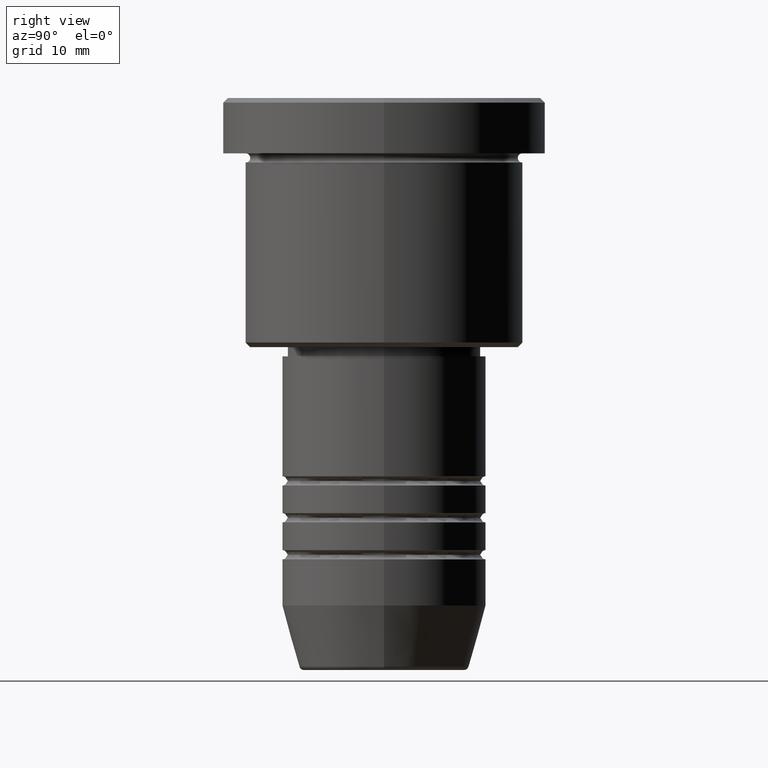
[diagram: clean part render]
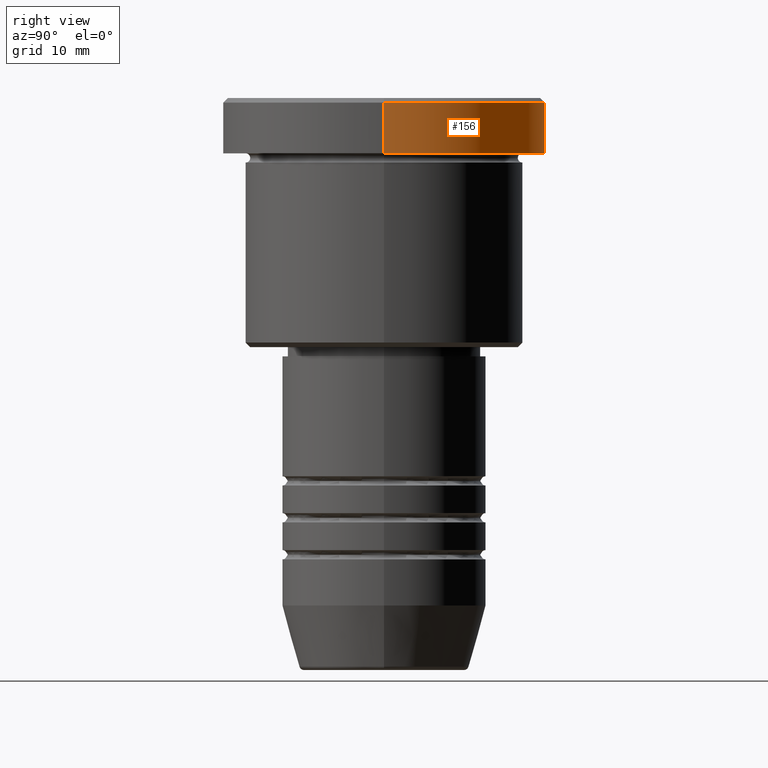
[diagram: same view with one face highlighted and labeled with its STEP entity id]
A machine part, right view. The second image highlights one B-rep face of the part: STEP entity #156.
In plain terms, the highlighted cylindrical surface (partial cylindrical patch) has radius 17.5 mm, axis along (-0, -0, 1).
Its self-contained STEP definition (entity closure, byte-faithful):
#44 = VERTEX_POINT ( 'NONE', #47 ) ;
#47 = CARTESIAN_POINT ( 'NONE',  ( -17.50000000000000000, 2.143131898507868248E-15, -0.5000000000000073275 ) ) ;
#121 = ORIENTED_EDGE ( 'NONE', *, *, #849, .T. ) ;
#150 = LINE ( 'NONE', #520, #932 ) ;
#154 = EDGE_LOOP ( 'NONE', ( #995, #637, #121, #396 ) ) ;
#156 = ADVANCED_FACE ( 'NONE', ( #720 ), #360, .T. ) ;
#198 = EDGE_CURVE ( 'NONE', #433, #624, #1159, .T. ) ;
#318 = LINE ( 'NONE', #397, #424 ) ;
#351 = DIRECTION ( 'NONE',  ( -0.000000000000000000, -0.000000000000000000, 1.000000000000000000 ) ) ;
#358 = CARTESIAN_POINT ( 'NONE',  ( 0.000000000000000000, 0.000000000000000000, -0.5000000000000073275 ) ) ;
#360 = CYLINDRICAL_SURFACE ( 'NONE', #549, 17.50000000000000000 ) ;
#371 = DIRECTION ( 'NONE',  ( 1.000000000000000000, 0.000000000000000000, 0.000000000000000000 ) ) ;
#383 = CIRCLE ( 'NONE', #1060, 17.50000000000000000 ) ;
#396 = ORIENTED_EDGE ( 'NONE', *, *, #856, .F. ) ;
#397 = CARTESIAN_POINT ( 'NONE',  ( -17.50000000000000000, 2.143131898507868248E-15, 0.000000000000000000 ) ) ;
#423 = CARTESIAN_POINT ( 'NONE',  ( 17.50000000000000000, 0.000000000000000000, -0.5000000000000073275 ) ) ;
#424 = VECTOR ( 'NONE', #1131, 1000.000000000000000 ) ;
#431 = DIRECTION ( 'NONE',  ( -0.000000000000000000, -0.000000000000000000, 1.000000000000000000 ) ) ;
#433 = VERTEX_POINT ( 'NONE', #676 ) ;
#503 = CARTESIAN_POINT ( 'NONE',  ( -17.50000000000000000, 2.143131898507868248E-15, -5.999999999999995559 ) ) ;
#520 = CARTESIAN_POINT ( 'NONE',  ( 17.50000000000000000, 0.000000000000000000, 0.000000000000000000 ) ) ;
#549 = AXIS2_PLACEMENT_3D ( 'NONE', #804, #1079, #1177 ) ;
#624 = VERTEX_POINT ( 'NONE', #503 ) ;
#637 = ORIENTED_EDGE ( 'NONE', *, *, #930, .T. ) ;
#676 = CARTESIAN_POINT ( 'NONE',  ( 17.50000000000000000, 0.000000000000000000, -5.999999999999995559 ) ) ;
#720 = FACE_OUTER_BOUND ( 'NONE', #154, .T. ) ;
#746 = VERTEX_POINT ( 'NONE', #423 ) ;
#804 = CARTESIAN_POINT ( 'NONE',  ( 0.000000000000000000, 0.000000000000000000, 0.000000000000000000 ) ) ;
#843 = AXIS2_PLACEMENT_3D ( 'NONE', #1172, #351, #371 ) ;
#849 = EDGE_CURVE ( 'NONE', #44, #746, #383, .T. ) ;
#856 = EDGE_CURVE ( 'NONE', #433, #746, #150, .T. ) ;
#930 = EDGE_CURVE ( 'NONE', #624, #44, #318, .T. ) ;
#932 = VECTOR ( 'NONE', #431, 1000.000000000000000 ) ;
#967 = DIRECTION ( 'NONE',  ( 0.000000000000000000, 0.000000000000000000, -1.000000000000000000 ) ) ;
#975 = DIRECTION ( 'NONE',  ( 1.000000000000000000, 0.000000000000000000, 0.000000000000000000 ) ) ;
#995 = ORIENTED_EDGE ( 'NONE', *, *, #198, .T. ) ;
#1060 = AXIS2_PLACEMENT_3D ( 'NONE', #358, #967, #975 ) ;
#1079 = DIRECTION ( 'NONE',  ( -0.000000000000000000, -0.000000000000000000, 1.000000000000000000 ) ) ;
#1131 = DIRECTION ( 'NONE',  ( -0.000000000000000000, -0.000000000000000000, 1.000000000000000000 ) ) ;
#1159 = CIRCLE ( 'NONE', #843, 17.50000000000000000 ) ;
#1172 = CARTESIAN_POINT ( 'NONE',  ( 0.000000000000000000, 0.000000000000000000, -5.999999999999995559 ) ) ;
#1177 = DIRECTION ( 'NONE',  ( 1.000000000000000000, 0.000000000000000000, 0.000000000000000000 ) ) ;